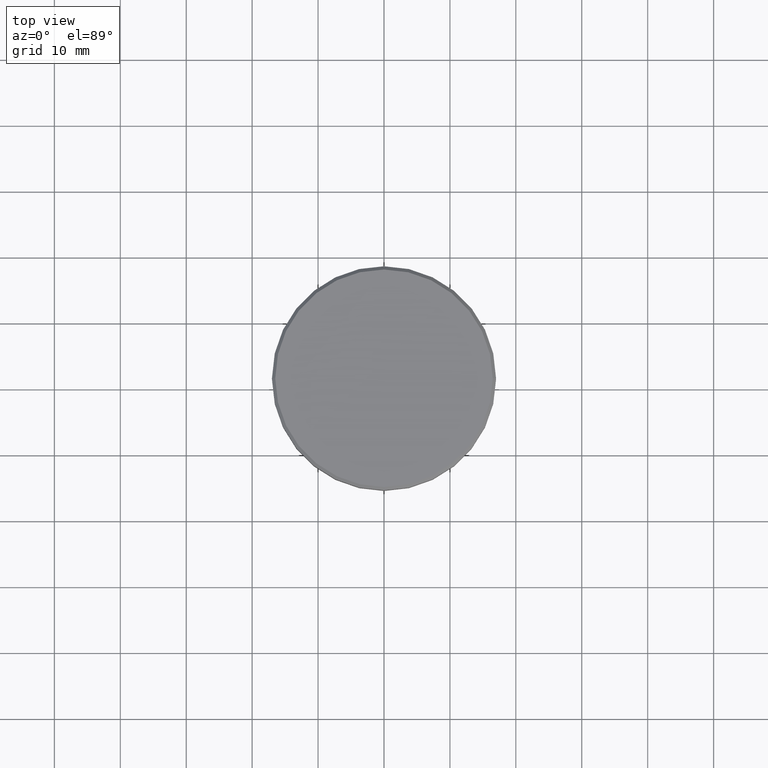
[diagram: clean part render]
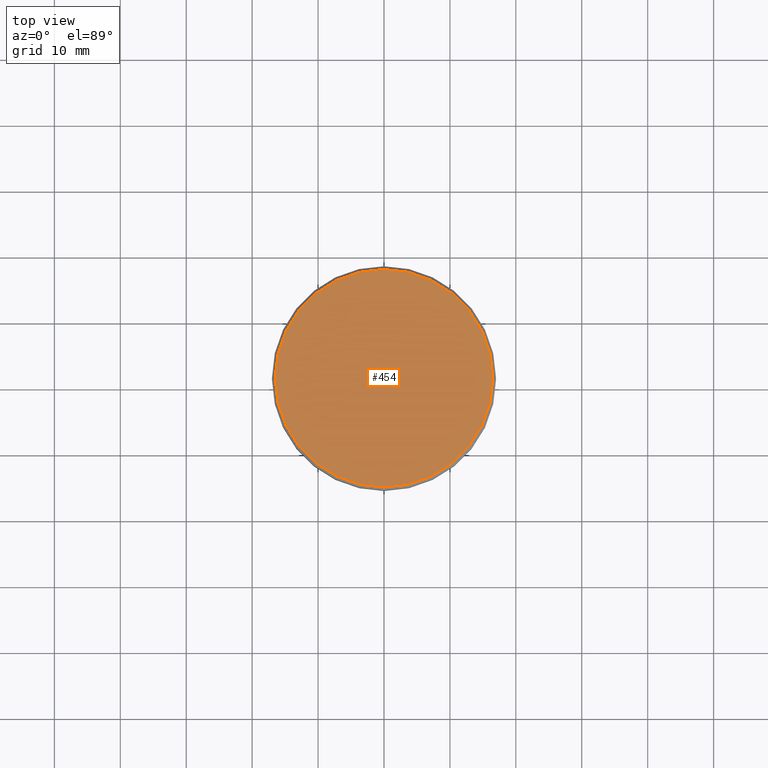
[diagram: same view with one face highlighted and labeled with its STEP entity id]
A machine part, top view. The second image highlights one B-rep face of the part: STEP entity #454.
In plain terms, the highlighted planar face has unit normal (0, -0, 1).
Its self-contained STEP definition (entity closure, byte-faithful):
#55 = DIRECTION ( 'NONE',  ( 1.000000000000000000, 0.000000000000000000, 0.000000000000000000 ) ) ;
#58 = CIRCLE ( 'NONE', #723, 16.50000000000000000 ) ;
#83 = AXIS2_PLACEMENT_3D ( 'NONE', #444, #1001, #450 ) ;
#92 = ORIENTED_EDGE ( 'NONE', *, *, #655, .T. ) ;
#150 = CARTESIAN_POINT ( 'NONE',  ( -16.50000000000000000, 0.000000000000000000, 0.000000000000000000 ) ) ;
#192 = ORIENTED_EDGE ( 'NONE', *, *, #706, .T. ) ;
#218 = PLANE ( 'NONE',  #611 ) ;
#304 = CARTESIAN_POINT ( 'NONE',  ( 0.000000000000000000, 0.000000000000000000, 0.000000000000000000 ) ) ;
#444 = CARTESIAN_POINT ( 'NONE',  ( 0.000000000000000000, 0.000000000000000000, 0.000000000000000000 ) ) ;
#450 = DIRECTION ( 'NONE',  ( 1.000000000000000000, 0.000000000000000000, 0.000000000000000000 ) ) ;
#454 = ADVANCED_FACE ( 'NONE', ( #478 ), #218, .T. ) ;
#478 = FACE_OUTER_BOUND ( 'NONE', #1102, .T. ) ;
#580 = DIRECTION ( 'NONE',  ( 0.000000000000000000, -0.000000000000000000, 1.000000000000000000 ) ) ;
#611 = AXIS2_PLACEMENT_3D ( 'NONE', #304, #580, #1119 ) ;
#655 = EDGE_CURVE ( 'NONE', #1012, #758, #58, .T. ) ;
#697 = CARTESIAN_POINT ( 'NONE',  ( 0.000000000000000000, 0.000000000000000000, 0.000000000000000000 ) ) ;
#706 = EDGE_CURVE ( 'NONE', #758, #1012, #1044, .T. ) ;
#723 = AXIS2_PLACEMENT_3D ( 'NONE', #697, #1054, #55 ) ;
#758 = VERTEX_POINT ( 'NONE', #1171 ) ;
#1001 = DIRECTION ( 'NONE',  ( -0.000000000000000000, -0.000000000000000000, 1.000000000000000000 ) ) ;
#1012 = VERTEX_POINT ( 'NONE', #150 ) ;
#1044 = CIRCLE ( 'NONE', #83, 16.50000000000000000 ) ;
#1054 = DIRECTION ( 'NONE',  ( -0.000000000000000000, -0.000000000000000000, 1.000000000000000000 ) ) ;
#1102 = EDGE_LOOP ( 'NONE', ( #92, #192 ) ) ;
#1119 = DIRECTION ( 'NONE',  ( 1.000000000000000000, 0.000000000000000000, 0.000000000000000000 ) ) ;
#1171 = CARTESIAN_POINT ( 'NONE',  ( 16.50000000000000000, 2.051283388571816887E-15, 0.000000000000000000 ) ) ;